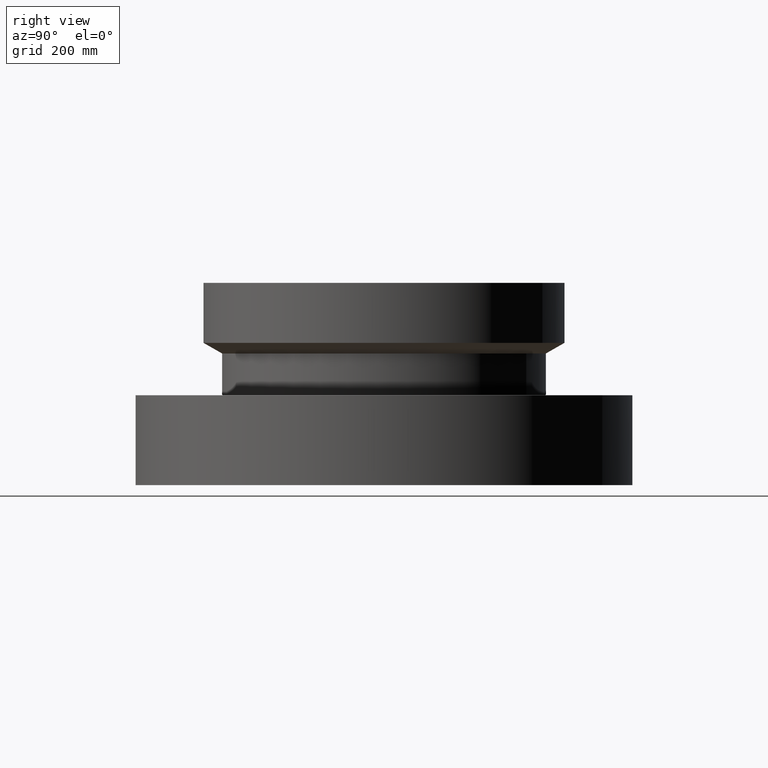
[diagram: clean part render]
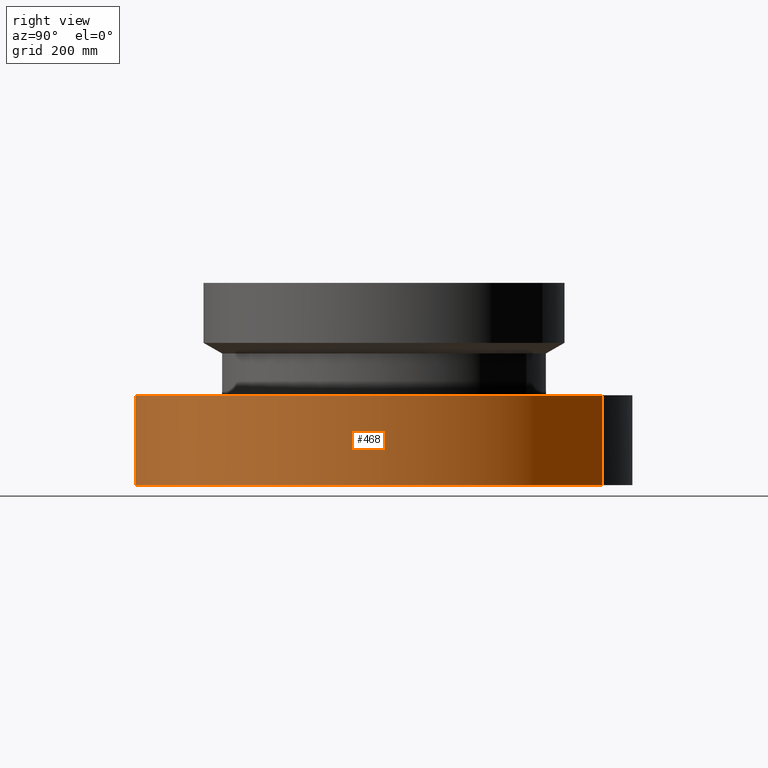
[diagram: same view with one face highlighted and labeled with its STEP entity id]
A machine part, right view. The second image highlights one B-rep face of the part: STEP entity #468.
In plain terms, the highlighted cylindrical surface (partial cylindrical patch) has radius 492.125 mm, axis along (0, 0, -1).
Its self-contained STEP definition (entity closure, byte-faithful):
#99=AXIS2_PLACEMENT_3D('Circle Axis2P3D',#97,#98,$) ;
#429=AXIS2_PLACEMENT_3D('Cylinder Axis2P3D',#426,#427,#428) ;
#459=AXIS2_PLACEMENT_3D('Circle Axis2P3D',#457,#458,$) ;
#97=CARTESIAN_POINT('Axis2P3D Location',(0.,0.,7.00000000003)) ;
#101=CARTESIAN_POINT('Vertex',(9.28886981049,17.0031621367,7.00000000003)) ;
#103=CARTESIAN_POINT('Vertex',(-9.28886981049,-17.0031621367,7.00000000003)) ;
#426=CARTESIAN_POINT('Axis2P3D Location',(0.,0.,7.75000000003)) ;
#435=CARTESIAN_POINT('Vertex',(-9.28886981049,-17.0031621367,1.1189649382E-015)) ;
#437=CARTESIAN_POINT('Vertex',(9.28886981049,17.0031621367,1.1189649382E-015)) ;
#440=CARTESIAN_POINT('Line Origine',(-9.28886981049,-17.0031621367,3.50000000001)) ;
#445=CARTESIAN_POINT('Line Origine',(9.28886981049,17.0031621367,3.50000000001)) ;
#457=CARTESIAN_POINT('Axis2P3D Location',(0.,0.,2.23792987641E-015)) ;
#98=DIRECTION('Axis2P3D Direction',(0.,0.,-0.0393700787402)) ;
#427=DIRECTION('Axis2P3D Direction',(0.,0.,-0.0393700787402)) ;
#428=DIRECTION('Axis2P3D XDirection',(0.0188750212049,0.0345504945626,0.)) ;
#441=DIRECTION('Vector Direction',(0.,0.,-0.0393700787402)) ;
#446=DIRECTION('Vector Direction',(0.,0.,-0.0393700787402)) ;
#458=DIRECTION('Axis2P3D Direction',(0.,0.,-0.0393700787402)) ;
#442=VECTOR('Line Direction',#441,0.0393700787402) ;
#447=VECTOR('Line Direction',#446,0.0393700787402) ;
#463=ORIENTED_EDGE('',*,*,#461,.F.) ;
#464=ORIENTED_EDGE('',*,*,#449,.T.) ;
#465=ORIENTED_EDGE('',*,*,#105,.T.) ;
#466=ORIENTED_EDGE('',*,*,#444,.F.) ;
#468=ADVANCED_FACE('PartBody',(#467),#430,.T.) ;
#100=CIRCLE('generated circle',#99,19.3750000001) ;
#460=CIRCLE('generated circle',#459,19.3750000001) ;
#430=CYLINDRICAL_SURFACE('generated cylinder',#429,19.3750000001) ;
#105=EDGE_CURVE('',#102,#104,#100,.T.) ;
#444=EDGE_CURVE('',#436,#104,#443,.F.) ;
#449=EDGE_CURVE('',#438,#102,#448,.F.) ;
#461=EDGE_CURVE('',#438,#436,#460,.T.) ;
#462=EDGE_LOOP('',(#463,#464,#465,#466)) ;
#467=FACE_OUTER_BOUND('',#462,.T.) ;
#443=LINE('Line',#440,#442) ;
#448=LINE('Line',#445,#447) ;
#102=VERTEX_POINT('',#101) ;
#104=VERTEX_POINT('',#103) ;
#436=VERTEX_POINT('',#435) ;
#438=VERTEX_POINT('',#437) ;